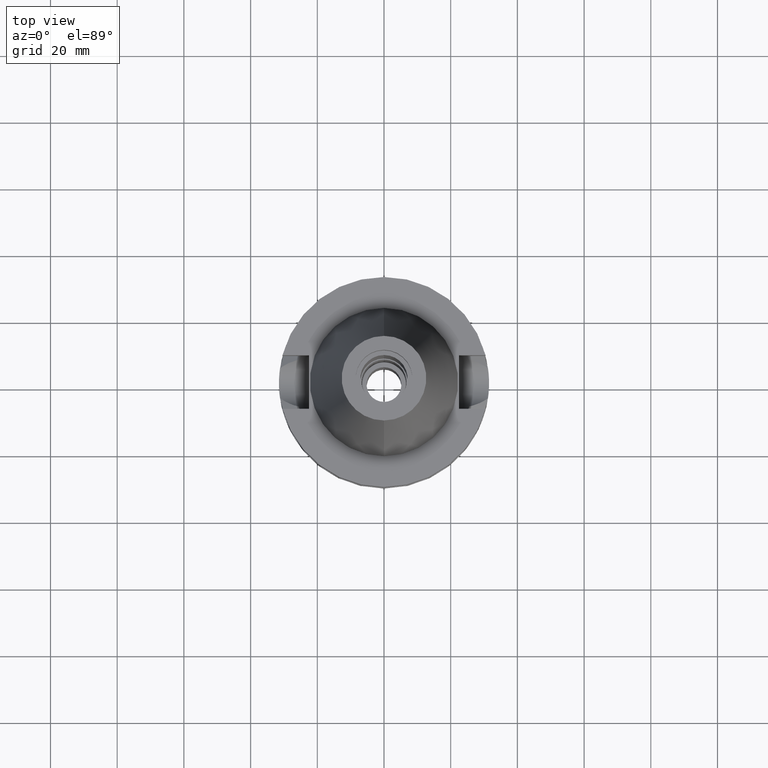
[diagram: clean part render]
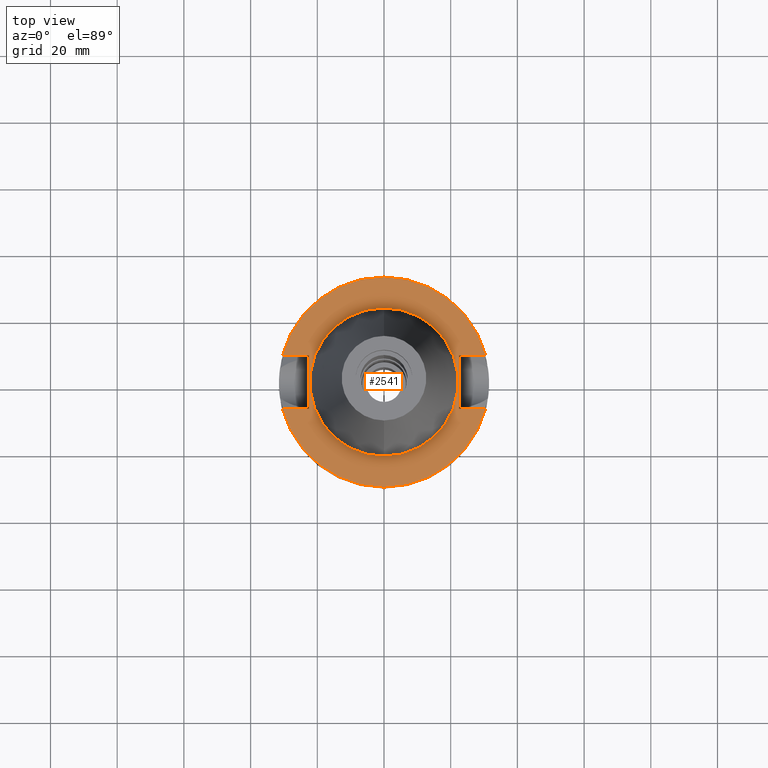
[diagram: same view with one face highlighted and labeled with its STEP entity id]
A machine part, top view. The second image highlights one B-rep face of the part: STEP entity #2541.
In plain terms, the highlighted planar face has unit normal (0, 0, -1).
Its self-contained STEP definition (entity closure, byte-faithful):
#61 = CARTESIAN_POINT ( 'NONE',  ( -22.50000000000000000, -8.050000000000000711, -1.000000000000000000 ) ) ;
#65 = EDGE_CURVE ( 'NONE', #662, #3137, #2821, .T. ) ;
#77 = CARTESIAN_POINT ( 'NONE',  ( 0.0000000000000000000, 2.144172848286999836E-14, -1.000000000000000000 ) ) ;
#100 = DIRECTION ( 'NONE',  ( 0.0000000000000000000, 0.0000000000000000000, 1.000000000000000000 ) ) ;
#102 = EDGE_LOOP ( 'NONE', ( #2809, #2883, #1882, #334, #1429, #1925, #2853, #363 ) ) ;
#120 = LINE ( 'NONE', #2938, #3025 ) ;
#156 = FACE_OUTER_BOUND ( 'NONE', #102, .T. ) ;
#177 = VERTEX_POINT ( 'NONE', #2300 ) ;
#187 = CARTESIAN_POINT ( 'NONE',  ( 0.0000000000000000000, 1.212400331155999925E-14, -1.000000000000000000 ) ) ;
#273 = CIRCLE ( 'NONE', #2380, 22.22500000000000142 ) ;
#289 = DIRECTION ( 'NONE',  ( 0.0000000000000000000, 1.000000000000000000, 0.0000000000000000000 ) ) ;
#300 = DIRECTION ( 'NONE',  ( 0.0000000000000000000, 1.000000000000000000, 0.0000000000000000000 ) ) ;
#334 = ORIENTED_EDGE ( 'NONE', *, *, #1611, .F. ) ;
#340 = EDGE_CURVE ( 'NONE', #177, #2090, #2258, .T. ) ;
#358 = CARTESIAN_POINT ( 'NONE',  ( 30.45402272279000044, 8.050000000000000711, -1.000000000000000000 ) ) ;
#363 = ORIENTED_EDGE ( 'NONE', *, *, #2220, .F. ) ;
#395 = PLANE ( 'NONE',  #2197 ) ;
#441 = EDGE_CURVE ( 'NONE', #2948, #3137, #120, .T. ) ;
#446 = DIRECTION ( 'NONE',  ( -1.000000000000000000, -3.550916904668000126E-14, 0.0000000000000000000 ) ) ;
#483 = CARTESIAN_POINT ( 'NONE',  ( 22.50000000000000000, 8.050000000000000711, -1.000000000000000000 ) ) ;
#522 = CIRCLE ( 'NONE', #3074, 22.22500000000000142 ) ;
#548 = CARTESIAN_POINT ( 'NONE',  ( 22.50000000000000000, -8.050000000000000711, -1.000000000000000000 ) ) ;
#596 = ORIENTED_EDGE ( 'NONE', *, *, #1968, .F. ) ;
#641 = VERTEX_POINT ( 'NONE', #1106 ) ;
#660 = LINE ( 'NONE', #1661, #1240 ) ;
#662 = VERTEX_POINT ( 'NONE', #1484 ) ;
#665 = EDGE_LOOP ( 'NONE', ( #961, #596 ) ) ;
#731 = EDGE_CURVE ( 'NONE', #2928, #2090, #2273, .T. ) ;
#845 = VECTOR ( 'NONE', #1305, 1000.000000000000000 ) ;
#961 = ORIENTED_EDGE ( 'NONE', *, *, #3032, .F. ) ;
#980 = CARTESIAN_POINT ( 'NONE',  ( 22.50000000000000000, -8.050000000000000711, -1.000000000000000000 ) ) ;
#1106 = CARTESIAN_POINT ( 'NONE',  ( -22.50000000000000000, 8.050000000000000711, -1.000000000000000000 ) ) ;
#1115 = DIRECTION ( 'NONE',  ( 0.0000000000000000000, -1.000000000000000000, 0.0000000000000000000 ) ) ;
#1133 = CARTESIAN_POINT ( 'NONE',  ( -30.45402272279000044, -8.050000000000000711, -1.000000000000000000 ) ) ;
#1140 = EDGE_CURVE ( 'NONE', #641, #662, #2369, .T. ) ;
#1203 = DIRECTION ( 'NONE',  ( 0.0000000000000000000, -1.000000000000000000, 0.0000000000000000000 ) ) ;
#1218 = FACE_BOUND ( 'NONE', #665, .T. ) ;
#1240 = VECTOR ( 'NONE', #1203, 1000.000000000000000 ) ;
#1297 = CARTESIAN_POINT ( 'NONE',  ( 0.0000000000000000000, -22.22500000000000142, -1.000000000000000000 ) ) ;
#1305 = DIRECTION ( 'NONE',  ( -1.000000000000000000, 3.550916904668000126E-14, 0.0000000000000000000 ) ) ;
#1324 = LINE ( 'NONE', #548, #1892 ) ;
#1330 = VERTEX_POINT ( 'NONE', #980 ) ;
#1429 = ORIENTED_EDGE ( 'NONE', *, *, #441, .T. ) ;
#1484 = CARTESIAN_POINT ( 'NONE',  ( -30.45402272279000044, 8.050000000000000711, -1.000000000000000000 ) ) ;
#1485 = DIRECTION ( 'NONE',  ( 0.0000000000000000000, 0.0000000000000000000, -1.000000000000000000 ) ) ;
#1581 = DIRECTION ( 'NONE',  ( 1.000000000000000000, 3.573249715389999860E-14, 0.0000000000000000000 ) ) ;
#1596 = CARTESIAN_POINT ( 'NONE',  ( 0.0000000000000000000, 22.22500000000000142, -1.000000000000000000 ) ) ;
#1611 = EDGE_CURVE ( 'NONE', #2948, #1330, #660, .T. ) ;
#1653 = CARTESIAN_POINT ( 'NONE',  ( -22.50000000000000000, 8.050000000000000711, -1.000000000000000000 ) ) ;
#1661 = CARTESIAN_POINT ( 'NONE',  ( 22.50000000000000000, 8.050000000000000711, -1.000000000000000000 ) ) ;
#1765 = CARTESIAN_POINT ( 'NONE',  ( 0.0000000000000000000, 2.144172848286999836E-14, -1.000000000000000000 ) ) ;
#1845 = AXIS2_PLACEMENT_3D ( 'NONE', #1765, #2728, #289 ) ;
#1871 = DIRECTION ( 'NONE',  ( 0.0000000000000000000, 0.0000000000000000000, -1.000000000000000000 ) ) ;
#1882 = ORIENTED_EDGE ( 'NONE', *, *, #2343, .F. ) ;
#1892 = VECTOR ( 'NONE', #1581, 1000.000000000000000 ) ;
#1900 = CARTESIAN_POINT ( 'NONE',  ( -22.50000000000000000, -8.050000000000000711, -1.000000000000000000 ) ) ;
#1925 = ORIENTED_EDGE ( 'NONE', *, *, #65, .F. ) ;
#1934 = LINE ( 'NONE', #61, #3113 ) ;
#1951 = DIRECTION ( 'NONE',  ( 0.0000000000000000000, 1.000000000000000000, 0.0000000000000000000 ) ) ;
#1968 = EDGE_CURVE ( 'NONE', #3080, #2601, #273, .T. ) ;
#2034 = DIRECTION ( 'NONE',  ( 0.0000000000000000000, 0.0000000000000000000, 1.000000000000000000 ) ) ;
#2090 = VERTEX_POINT ( 'NONE', #1133 ) ;
#2197 = AXIS2_PLACEMENT_3D ( 'NONE', #187, #1871, #2425 ) ;
#2220 = EDGE_CURVE ( 'NONE', #2928, #641, #1934, .T. ) ;
#2258 = CIRCLE ( 'NONE', #2667, 31.50000000000000000 ) ;
#2273 = LINE ( 'NONE', #2751, #845 ) ;
#2300 = CARTESIAN_POINT ( 'NONE',  ( 30.45402272279000044, -8.050000000000000711, -1.000000000000000000 ) ) ;
#2343 = EDGE_CURVE ( 'NONE', #1330, #177, #1324, .T. ) ;
#2369 = LINE ( 'NONE', #1653, #2577 ) ;
#2380 = AXIS2_PLACEMENT_3D ( 'NONE', #3026, #100, #2590 ) ;
#2425 = DIRECTION ( 'NONE',  ( 0.0000000000000000000, -1.000000000000000000, 0.0000000000000000000 ) ) ;
#2541 = ADVANCED_FACE ( 'NONE', ( #156, #1218 ), #395, .F. ) ;
#2577 = VECTOR ( 'NONE', #446, 1000.000000000000000 ) ;
#2590 = DIRECTION ( 'NONE',  ( 0.0000000000000000000, -1.000000000000000000, 0.0000000000000000000 ) ) ;
#2601 = VERTEX_POINT ( 'NONE', #1596 ) ;
#2667 = AXIS2_PLACEMENT_3D ( 'NONE', #2801, #1485, #1115 ) ;
#2728 = DIRECTION ( 'NONE',  ( 0.0000000000000000000, 0.0000000000000000000, -1.000000000000000000 ) ) ;
#2751 = CARTESIAN_POINT ( 'NONE',  ( -22.50000000000000000, -8.050000000000000711, -1.000000000000000000 ) ) ;
#2801 = CARTESIAN_POINT ( 'NONE',  ( 0.0000000000000000000, 2.144172848286999836E-14, -1.000000000000000000 ) ) ;
#2809 = ORIENTED_EDGE ( 'NONE', *, *, #731, .T. ) ;
#2821 = CIRCLE ( 'NONE', #1845, 31.50000000000000000 ) ;
#2853 = ORIENTED_EDGE ( 'NONE', *, *, #1140, .F. ) ;
#2883 = ORIENTED_EDGE ( 'NONE', *, *, #340, .F. ) ;
#2928 = VERTEX_POINT ( 'NONE', #1900 ) ;
#2938 = CARTESIAN_POINT ( 'NONE',  ( 22.50000000000000000, 8.050000000000000711, -1.000000000000000000 ) ) ;
#2948 = VERTEX_POINT ( 'NONE', #483 ) ;
#3025 = VECTOR ( 'NONE', #3058, 1000.000000000000000 ) ;
#3026 = CARTESIAN_POINT ( 'NONE',  ( 0.0000000000000000000, 2.144172848286999836E-14, -1.000000000000000000 ) ) ;
#3032 = EDGE_CURVE ( 'NONE', #2601, #3080, #522, .T. ) ;
#3058 = DIRECTION ( 'NONE',  ( 1.000000000000000000, -3.506251283225999947E-14, 0.0000000000000000000 ) ) ;
#3074 = AXIS2_PLACEMENT_3D ( 'NONE', #77, #2034, #300 ) ;
#3080 = VERTEX_POINT ( 'NONE', #1297 ) ;
#3113 = VECTOR ( 'NONE', #1951, 1000.000000000000000 ) ;
#3137 = VERTEX_POINT ( 'NONE', #358 ) ;